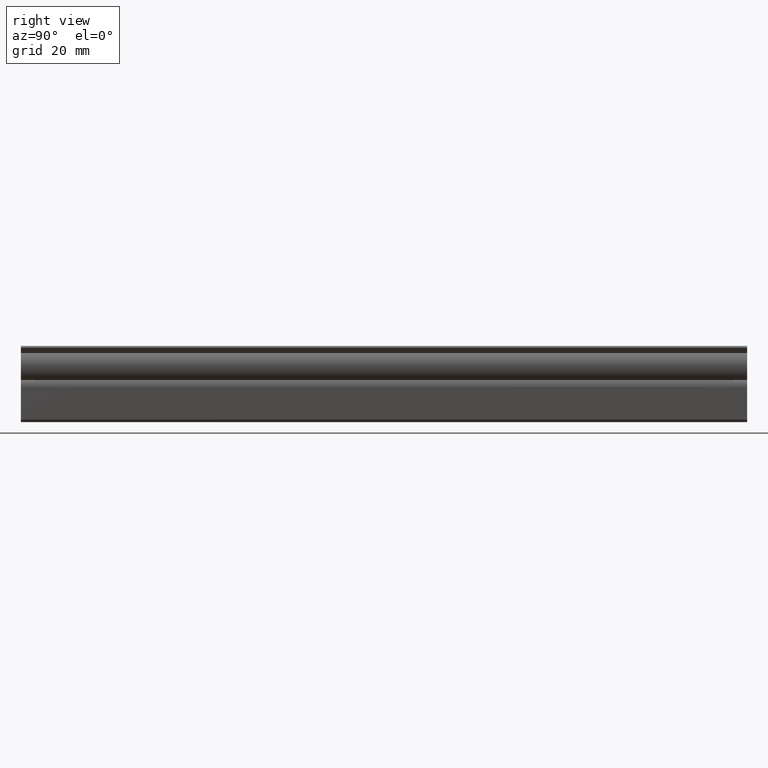
[diagram: clean part render]
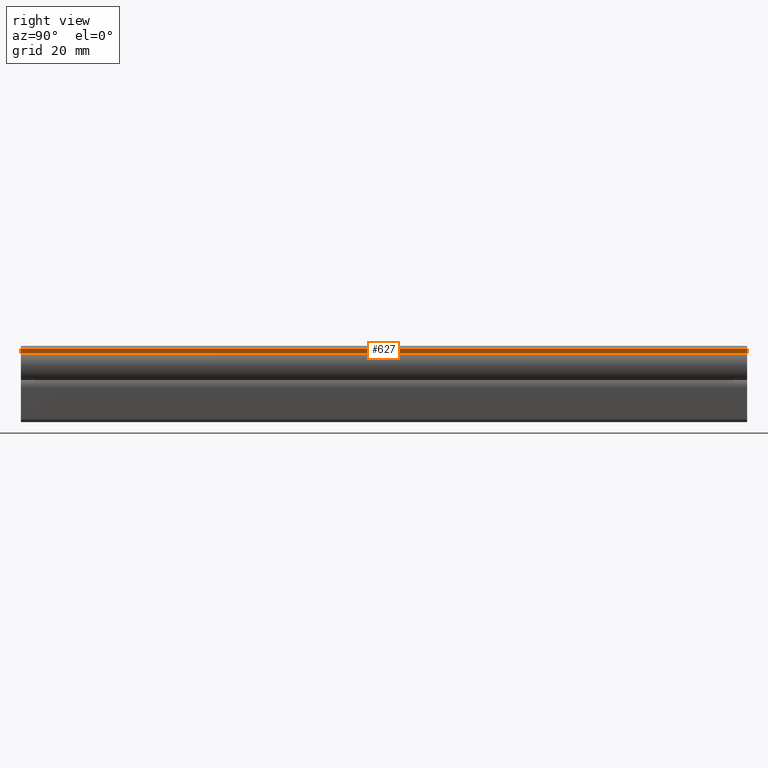
[diagram: same view with one face highlighted and labeled with its STEP entity id]
A machine part, right view. The second image highlights one B-rep face of the part: STEP entity #627.
In plain terms, the highlighted face is a freeform B-spline surface patch.
Its self-contained STEP definition (entity closure, byte-faithful):
#157=CARTESIAN_POINT('',(4.226537165138950,0.0,-1.980570563748675));
#158=VERTEX_POINT('',#157);
#172=CARTESIAN_POINT('',(5.353553390594129,0.0,-0.853553395556915));
#173=VERTEX_POINT('',#172);
#174=CARTESIAN_POINT('',(4.226537165138950,0.0,-1.980570563748675));
#175=CARTESIAN_POINT('',(5.353553390594129,0.0,-0.853553395556915));
#176=QUASI_UNIFORM_CURVE('',1,(#174,#175),.UNSPECIFIED.,.F.,.U.);
#177=EDGE_CURVE('',#158,#173,#176,.T.);
#343=CARTESIAN_POINT('',(5.353553390594129,200.0,-0.853553395556915));
#344=VERTEX_POINT('',#343);
#362=CARTESIAN_POINT('',(4.226537165138950,200.0,-1.980570563748675));
#363=VERTEX_POINT('',#362);
#364=CARTESIAN_POINT('',(4.226537165138950,200.0,-1.980570563748675));
#365=CARTESIAN_POINT('',(5.353553390594129,200.0,-0.853553395556915));
#366=QUASI_UNIFORM_CURVE('',1,(#364,#365),.UNSPECIFIED.,.F.,.U.);
#367=EDGE_CURVE('',#363,#344,#366,.T.);
#602=CARTESIAN_POINT('',(5.353553390594129,200.0,-0.853553395556915));
#603=CARTESIAN_POINT('',(5.353553390594129,0.0,-0.853553395556915));
#604=QUASI_UNIFORM_CURVE('',1,(#602,#603),.UNSPECIFIED.,.F.,.U.);
#605=EDGE_CURVE('',#344,#173,#604,.T.);
#612=CARTESIAN_POINT('',(5.409847791946637,-9.989999612361194,-0.797258947114767));
#613=CARTESIAN_POINT('',(4.170242763786462,-9.989999612361194,-2.036865012190843));
#614=CARTESIAN_POINT('',(5.409847791946637,209.990004976779200,-0.797258947114767));
#615=CARTESIAN_POINT('',(4.170242763786462,209.990004976779200,-2.036865012190843));
#616=B_SPLINE_SURFACE_WITH_KNOTS('',1,1,((#612,#614),(#613,#615)),.UNSPECIFIED.,.F.,.F.,.U.,(2,2),(2,2),(0.041708377039433,0.958291622960567),(0.0,219.980004589140410),.UNSPECIFIED.);
#617=ORIENTED_EDGE('',*,*,#177,.F.);
#618=CARTESIAN_POINT('',(4.226537165138950,200.0,-1.980570563748675));
#619=CARTESIAN_POINT('',(4.226537165138950,0.0,-1.980570563748675));
#620=QUASI_UNIFORM_CURVE('',1,(#618,#619),.UNSPECIFIED.,.F.,.U.);
#621=EDGE_CURVE('',#363,#158,#620,.T.);
#622=ORIENTED_EDGE('',*,*,#621,.F.);
#623=ORIENTED_EDGE('',*,*,#367,.T.);
#624=ORIENTED_EDGE('',*,*,#605,.T.);
#625=EDGE_LOOP('',(#617,#622,#623,#624));
#626=FACE_OUTER_BOUND('',#625,.T.);
#627=ADVANCED_FACE('',(#626),#616,.T.);